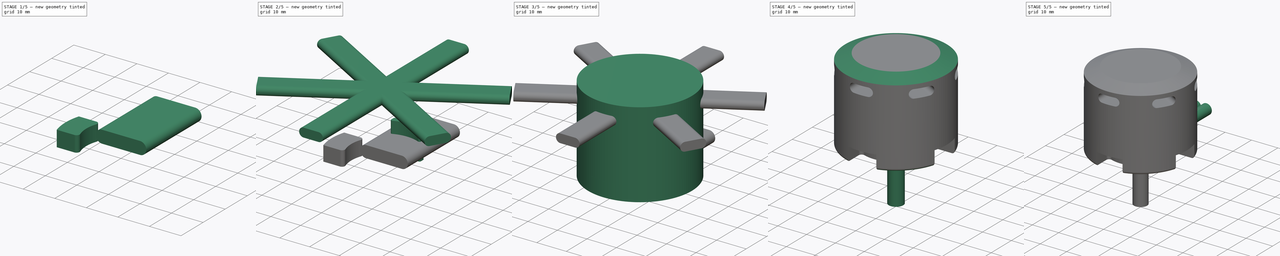
[diagram: build sequence overview — one tinted view per stage of 5, left to right]
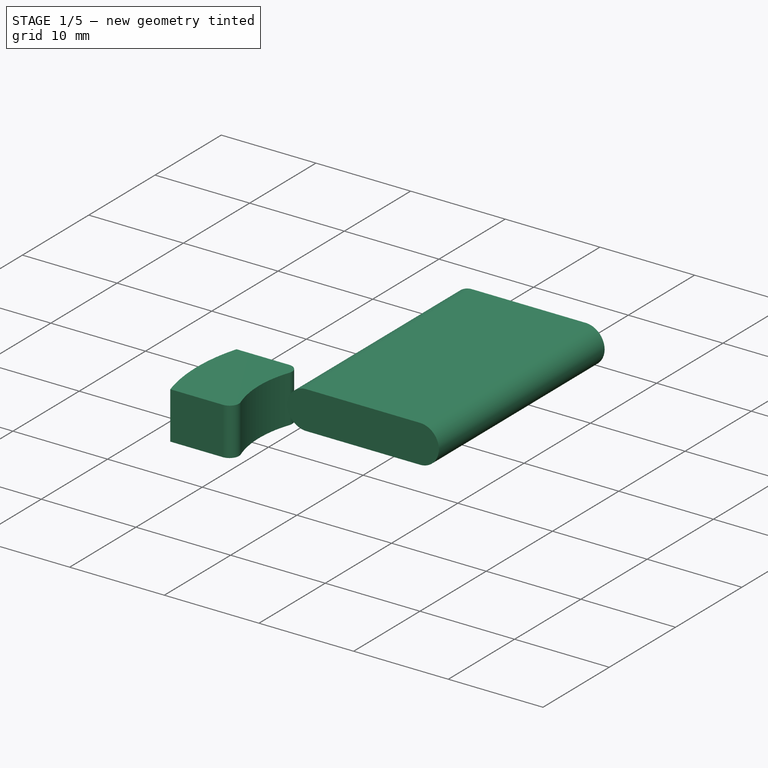
[diagram: stage 1 of 5 — iso view after this stage's code; geometry added in this stage tinted green]
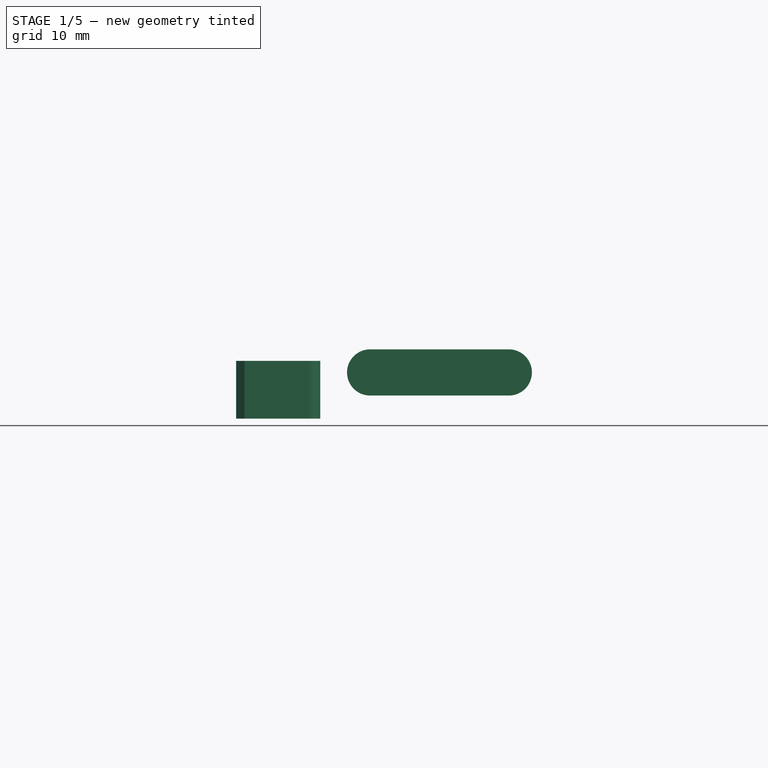
[diagram: stage 1 of 5 — front view after this stage's code; geometry added in this stage tinted green]
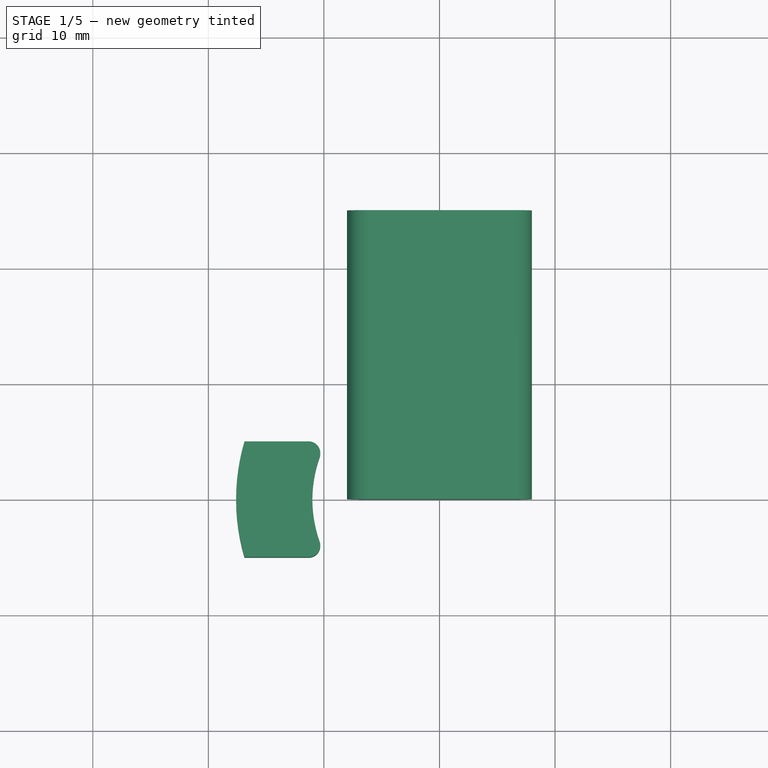
[diagram: stage 1 of 5 — top view after this stage's code; geometry added in this stage tinted green]
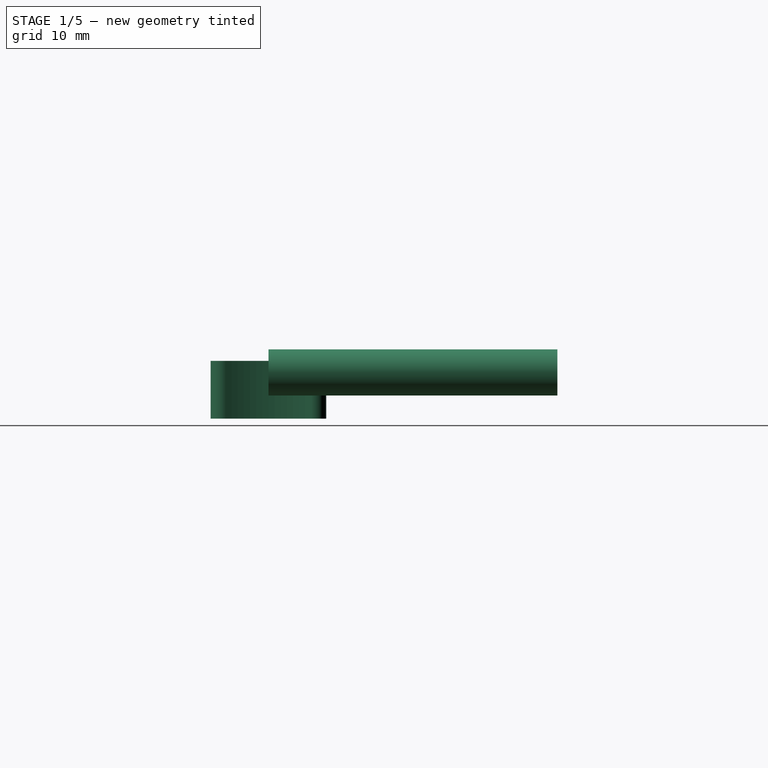
[diagram: stage 1 of 5 — right view after this stage's code; geometry added in this stage tinted green]
FCSTD DOCUMENT  (FreeCAD 0.19R24267 +99 (Git))
Label: AXI_28XX
License: All rights reserved
LicenseURL: http://en.wikipedia.org/wiki/All_rights_reserved
objects: Sketcher::SketchObject×7, PartDesign::Body×7, PartDesign::Pad×6, Part::Cylinder×3, PartDesign::FeatureBase×2, Spreadsheet::Sheet×1, PartDesign::Hole×1, PartDesign::PolarPattern×1, PartDesign::Chamfer×1, PartDesign::Fillet×1, Part::MultiFuse×1, Part::Cut×1, App::Part×1
note: 40 computed .brp shape members not serialized (recipe doc carries the construction recipe); baked Part::Feature solids carry a one-line shape summary decoded from their .brp

FEATURE [PartDesign::Body] Body002
  Group = -> [Sketch004,Pad003]
  Origin = -> Origin003
  Tip = -> Pad003
FEATURE [Sketcher::SketchObject] Sketch005
  FullyConstrained = true
  MapMode = 5
  Support = -> [XY_Plane004]
  sketch-geometry (6):
    g0: ArcOfCircle CenterX=0 CenterY=0 CenterZ=0 NormalX=0 NormalY=0 NormalZ=1 AngleXU=0 Radius=11 StartAngle=2.80176 EndAngle=3.48143
    g1: ArcOfCircle CenterX=0 CenterY=0 CenterZ=0 NormalX=0 NormalY=0 NormalZ=1 AngleXU=0 Radius=17.6 StartAngle=2.85353 EndAngle=3.42965
    g2: LineSegment StartX=-16.8748 StartY=5 StartZ=0 EndX=-11.3137 EndY=5 EndZ=0
    g3: LineSegment StartX=-16.8748 StartY=-5 StartZ=0 EndX=-11.3137 EndY=-5 EndZ=0
    g4: ArcOfCircle CenterX=-11.3137 CenterY=4 CenterZ=0 NormalX=0 NormalY=0 NormalZ=1 AngleXU=0 Radius=1 StartAngle=5.94335 EndAngle=7.85398
    g5: ArcOfCircle CenterX=-11.3137 CenterY=-4 CenterZ=0 NormalX=0 NormalY=0 NormalZ=1 AngleXU=0 Radius=1 StartAngle=4.71239 EndAngle=6.62302
  constraints (16):
    c: Coincident(g0,g-1)
    c: Coincident(g1,g0)
    c: Radius(g0) = 11
    c: Radius(g1) = 17.6
    c: Coincident(g2,g1)
    c: Coincident(g3,g1)
    c: Horizontal(g3)
    c: Horizontal(g2)
    c: Tangent(g2,g4) = 1.5708
    c: Tangent(g0,g4) = 1.5708
    c: Tangent(g0,g5) = 1.5708
    c: Tangent(g3,g5) = -1.5708
    c: Equal(g5,g4)
    c: Radius(g4) = 1
    c: Symmetric(g0,g0,g-1)
    c: DistanceY(g1,g1) = 10
FEATURE [PartDesign::Pad] Pad004
  Direction = (1,1,1)
  Length = 5
  Length2 = 100
  Profile = -> Sketch005
  Type = 0
FEATURE [PartDesign::Body] Body004
  BaseFeature = -> Body003
  Group = -> [Clone]
  Origin = -> Origin005
  Placement = pos=(0,0,0) rot=(0,0,1;3.14159rad)
  Tip = -> Clone
FEATURE [PartDesign::FeatureBase] Clone001
  BaseFeature = -> Body003
FEATURE [PartDesign::Body] Body005
  BaseFeature = -> Body003
  Group = -> [Clone001]
  Origin = -> Origin006
  Placement = pos=(0,0,0) rot=(0,0,1;1.5708rad)
  Tip = -> Clone001
FEATURE [Sketcher::SketchObject] Sketch006
  FullyConstrained = true
  MapMode = 5
  Placement = pos=(0,0,0) rot=(1,0,0;1.5708rad)
  Support = -> [XZ_Plane007]
  sketch-geometry (4):
    g0: ArcOfCircle CenterX=-6 CenterY=4 CenterZ=0 NormalX=0 NormalY=0 NormalZ=1 AngleXU=0 Radius=2 StartAngle=1.5708 EndAngle=4.71239
    g1: ArcOfCircle CenterX=6 CenterY=4 CenterZ=0 NormalX=0 NormalY=0 NormalZ=1 AngleXU=0 Radius=2 StartAngle=4.71239 EndAngle=7.85398
    g2: LineSegment StartX=-6 StartY=2 StartZ=0 EndX=6 EndY=2 EndZ=0
    g3: LineSegment StartX=-6 StartY=6 StartZ=0 EndX=6 EndY=6 EndZ=0
  constraints (9):
    c: Tangent(g0,g3) = 1.5708
    c: Tangent(g0,g2) = -1.5708
    c: Tangent(g2,g1) = -1.5708
    c: Tangent(g3,g1) = 1.5708
    c: Horizontal(g2)
    c: Symmetric(g0,g1,g-2)
    c: Radius(g1) = 2
    c: DistanceX(g0,g1) = 12
    c: DistanceY(g-1,g1) = 2
FEATURE [PartDesign::Pad] Pad005
  Direction = (1,1,1)
  Length = 25
  Length2 = 100
  Placement = pos=(0,0,0) rot=(1,0,0;1.5708rad)
  Profile = -> Sketch006
  Reversed = true
  Type = 0
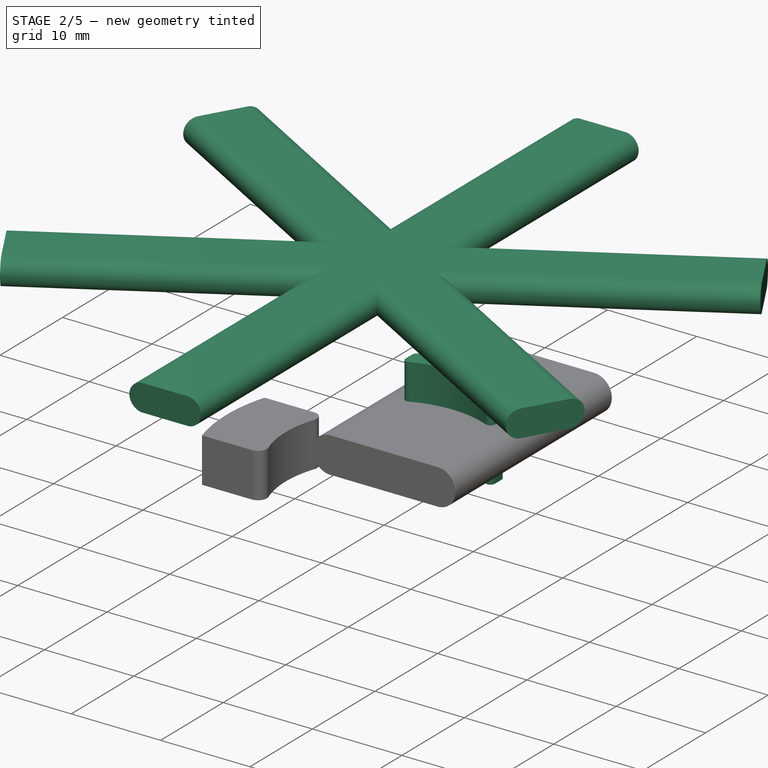
[diagram: stage 2 of 5 — iso view after this stage's code; geometry added in this stage tinted green]
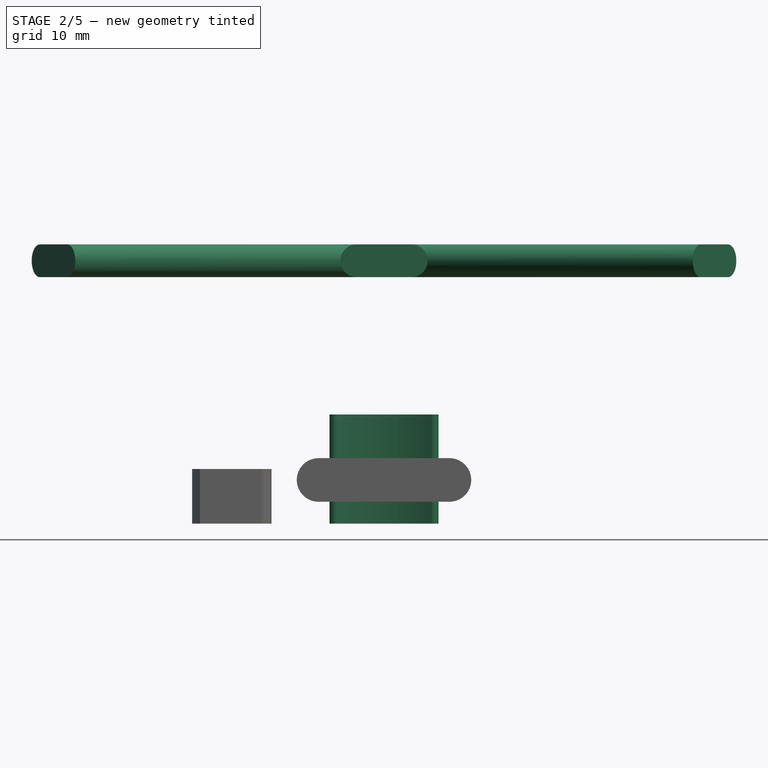
[diagram: stage 2 of 5 — front view after this stage's code; geometry added in this stage tinted green]
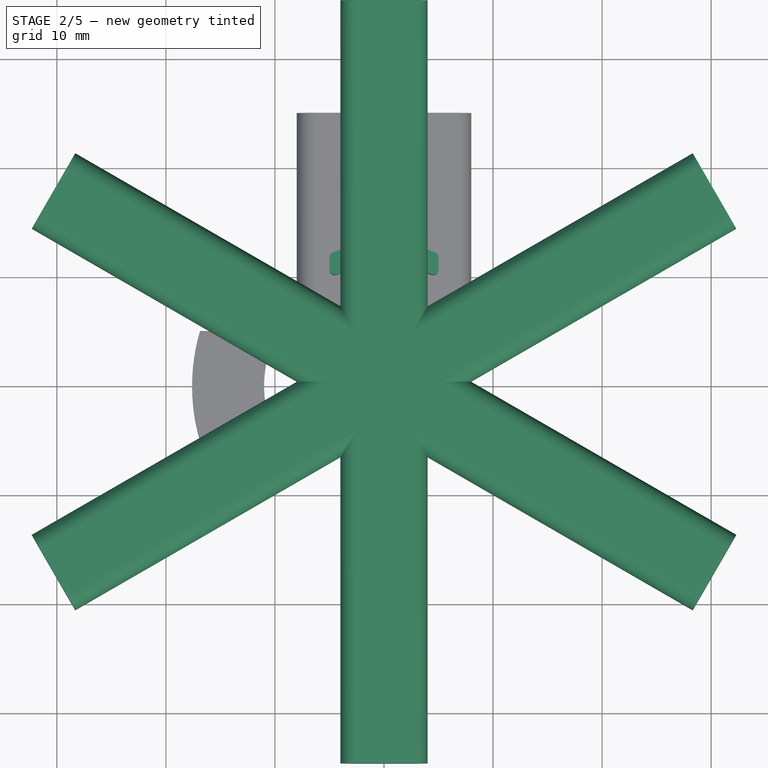
[diagram: stage 2 of 5 — top view after this stage's code; geometry added in this stage tinted green]
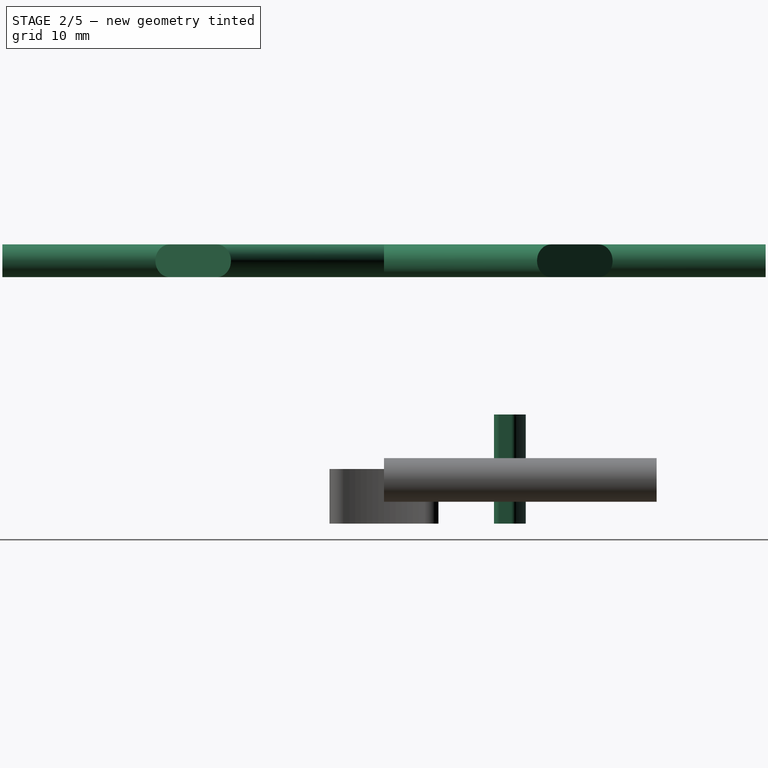
[diagram: stage 2 of 5 — right view after this stage's code; geometry added in this stage tinted green]
FEATURE [Sketcher::SketchObject] Sketch003
  FullyConstrained = true
  MapMode = 5
  Placement = pos=(0,0,0) rot=(1,0,0;1.5708rad)
  Support = -> [XZ_Plane002]
  expr: Constraints[8] = <<AxiParameters>>.VAL_A - 5
  sketch-geometry (4):
    g0: ArcOfCircle CenterX=-2.5 CenterY=24.1 CenterZ=0 NormalX=0 NormalY=0 NormalZ=1 AngleXU=0 Radius=1.5 StartAngle=1.5708 EndAngle=4.71239
    g1: ArcOfCircle CenterX=2.5 CenterY=24.1 CenterZ=0 NormalX=0 NormalY=0 NormalZ=1 AngleXU=0 Radius=1.5 StartAngle=4.71239 EndAngle=7.85398
    g2: LineSegment StartX=-2.5 StartY=22.6 StartZ=0 EndX=2.5 EndY=22.6 EndZ=0
    g3: LineSegment StartX=-2.5 StartY=25.6 StartZ=0 EndX=2.5 EndY=25.6 EndZ=0
  constraints (9):
    c: Tangent(g0,g3) = 1.5708
    c: Tangent(g0,g2) = -1.5708
    c: Tangent(g2,g1) = -1.5708
    c: Tangent(g3,g1) = 1.5708
    c: Horizontal(g2)
    c: Symmetric(g0,g1,g-2)
    c: Radius(g0) = 1.5
    c: DistanceX(g0,g1) = 5
    c: DistanceY(g-1,g1) = 24.1
FEATURE [PartDesign::Pad] Pad002
  Direction = (1,1,1)
  Length = 35
  Length2 = 100
  Placement = pos=(0,0,0) rot=(1,0,0;1.5708rad)
  Profile = -> Sketch003
  Type = 0
FEATURE [PartDesign::PolarPattern] PolarPattern
  Angle = 360
  Axis = -> Z_Axis002
  BaseFeature = -> Pad002
  Occurrences = 6
  Originals = -> [Pad002]
  Placement = pos=(0,0,0) rot=(1,0,0;1.5708rad)
FEATURE [PartDesign::Body] Body
  Group = -> [Sketch,Sketch001,Pad,Hole,Sketch002,Pad001,Chamfer,Fillet]
  Origin = -> Origin001
  Tip = -> Fillet
FEATURE [Sketcher::SketchObject] Sketch004
  FullyConstrained = true
  MapMode = 5
  Support = -> [XY_Plane003]
  sketch-geometry (8):
    g0: ArcOfCircle CenterX=0 CenterY=0 CenterZ=0 NormalX=0 NormalY=0 NormalZ=1 AngleXU=0 Radius=13 StartAngle=1.20253 EndAngle=1.93906
    g1: ArcOfCircle CenterX=0 CenterY=0 CenterZ=0 NormalX=0 NormalY=0 NormalZ=1 AngleXU=0 Radius=11 StartAngle=1.16875 EndAngle=1.97284
    g2: LineSegment StartX=5 StartY=10.583 StartZ=0 EndX=5 EndY=11.6619 EndZ=0
    g3: LineSegment StartX=-5 StartY=10.583 StartZ=0 EndX=-5 EndY=11.6619 EndZ=0
    g4: ArcOfCircle CenterX=-4.5 CenterY=10.583 CenterZ=0 NormalX=0 NormalY=0 NormalZ=1 AngleXU=0 Radius=0.5 StartAngle=3.14159 EndAngle=5.11444
    g5: ArcOfCircle CenterX=4.5 CenterY=10.583 CenterZ=0 NormalX=0 NormalY=0 NormalZ=1 AngleXU=0 Radius=0.5 StartAngle=4.31034 EndAngle=6.28319
    g6: ArcOfCircle CenterX=-4.5 CenterY=11.6619 CenterZ=0 NormalX=0 NormalY=0 NormalZ=1 AngleXU=0 Radius=0.5 StartAngle=1.93906 EndAngle=3.14159
    g7: ArcOfCircle CenterX=4.5 CenterY=11.6619 CenterZ=0 NormalX=0 NormalY=0 NormalZ=1 AngleXU=0 Radius=0.5 StartAngle=8e-16 EndAngle=1.20253
  constraints (19):
    c: Coincident(g1,g0)
    c: Vertical(g3)
    c: Vertical(g2)
    c: Tangent(g1,g4) = 1.5708
    c: Tangent(g3,g4) = 1.5708
    c: Tangent(g1,g5) = 1.5708
    c: Tangent(g2,g5) = -1.5708
    c: Tangent(g0,g6) = -1.5708
    c: Tangent(g3,g6) = 1.5708
    c: Tangent(g0,g7) = -1.5708
    c: Tangent(g2,g7) = -1.5708
    c: Equal(g6,g7)
    c: Symmetric(g3,g2,g-2)
    c: Radius(g5) = 0.5
    c: Radius(g7) = 0.5
    c: DistanceX(g3,g2) = 10
    c: Radius(g1) = 11
    c: Radius(g0) = 13
    c: Coincident(g0,g-1)
FEATURE [PartDesign::Pad] Pad003
  Direction = (1,1,1)
  Length = 10
  Length2 = 100
  Profile = -> Sketch004
  Type = 0
FEATURE [PartDesign::Body] Body003
  Group = -> [Sketch005,Pad004]
  Origin = -> Origin004
  Tip = -> Pad004
FEATURE [PartDesign::FeatureBase] Clone
  BaseFeature = -> Body003
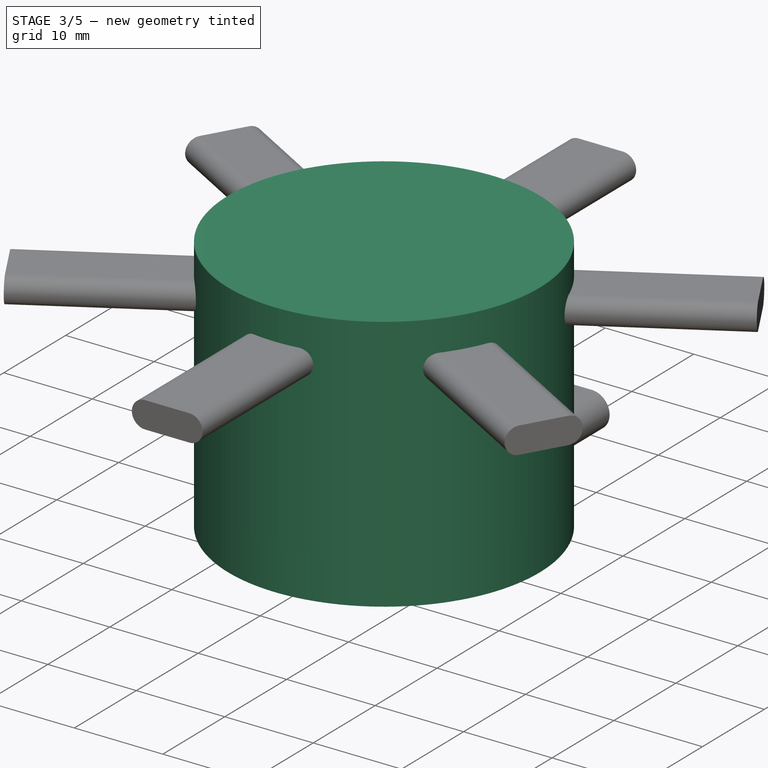
[diagram: stage 3 of 5 — iso view after this stage's code; geometry added in this stage tinted green]
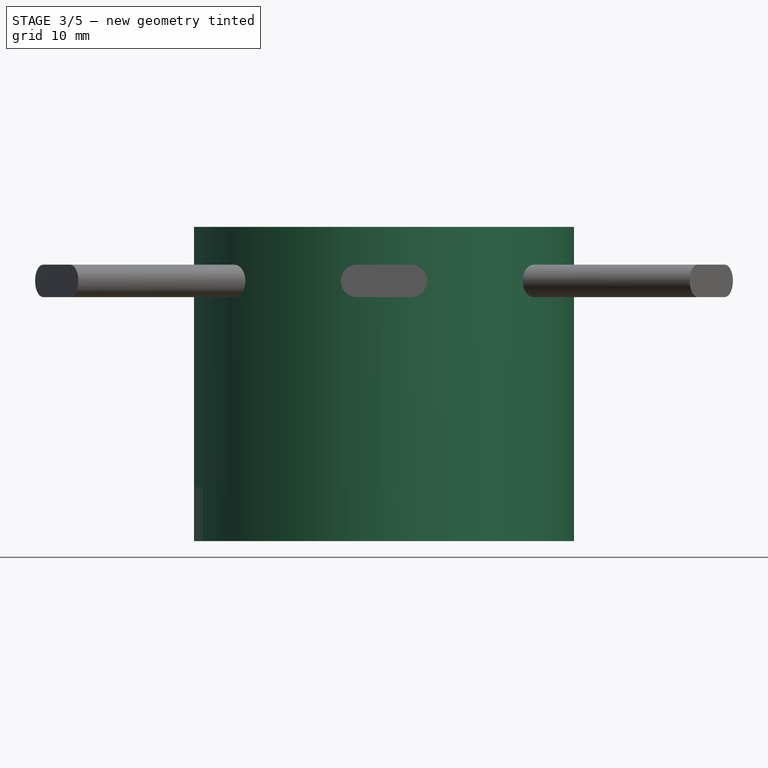
[diagram: stage 3 of 5 — front view after this stage's code; geometry added in this stage tinted green]
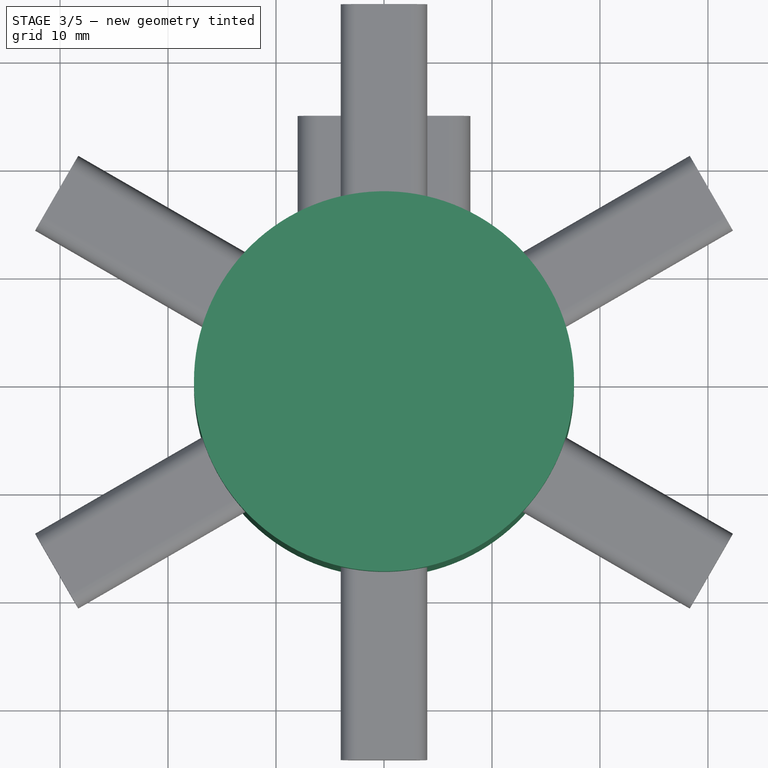
[diagram: stage 3 of 5 — top view after this stage's code; geometry added in this stage tinted green]
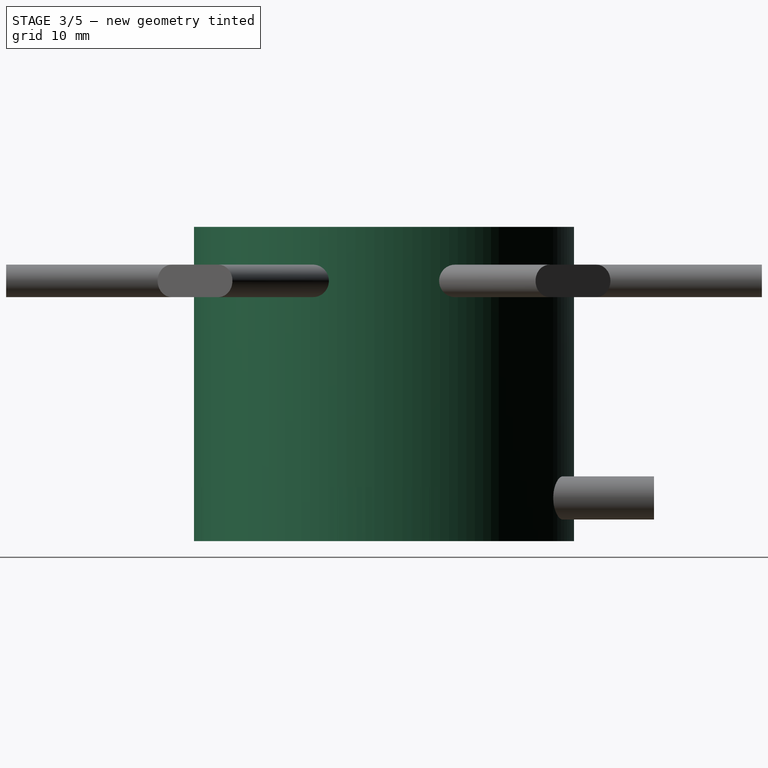
[diagram: stage 3 of 5 — right view after this stage's code; geometry added in this stage tinted green]
FEATURE [Spreadsheet::Sheet] Spreadsheet  label="AxiParameters"
  cells = A1=AXI-28xx; B1=A; C1=B; D1=L; A2=AXI-2808; B2=29.1; C2=18; D2=49.6; A3=AXI-2814; B3=35.1; C3=18; D3=55.6; A4=AXI-2820; B4=43.4; C4=20; D4=65.90000000000001; A5=AXI-2826; B5=49.4; C5=20; D5=71.90000000000001; A6=Copier le choix de votre moteur dans la ligne ci dessous; A7=Choix; B7=A; C7=B; D7=L; A8(CHOIX)=AXI-2808; B8(VAL_A)=29.1; C8(VAL_B)=18; D8(VAL_L)=49.6
FEATURE [Sketcher::SketchObject] Sketch
  FullyConstrained = true
  MapMode = 5
  Placement = pos=(0,0,0) rot=(1,0,0;3.14159rad)
  sketch-geometry (14):
    g0: Circle CenterX=0 CenterY=0 CenterZ=0 NormalX=0 NormalY=0 NormalZ=1 AngleXU=0 Radius=8
    g1: Circle CenterX=0 CenterY=0 CenterZ=0 NormalX=0 NormalY=0 NormalZ=1 AngleXU=0 Radius=12.5
    g2: LineSegment StartX=0 StartY=0 StartZ=0 EndX=8.83883 EndY=8.83883 EndZ=0
    g3: LineSegment StartX=0 StartY=0 StartZ=0 EndX=-8.83883 EndY=8.83883 EndZ=0
    g4: LineSegment StartX=0 StartY=0 StartZ=0 EndX=-8.83883 EndY=-8.83883 EndZ=0
    g5: LineSegment StartX=0 StartY=0 StartZ=0 EndX=8.83883 EndY=-8.83883 EndZ=0
    g6: Circle CenterX=8.83883 CenterY=8.83883 CenterZ=0 NormalX=0 NormalY=0 NormalZ=1 AngleXU=0 Radius=1.5
    g7: Circle CenterX=-8.83883 CenterY=8.83883 CenterZ=0 NormalX=0 NormalY=0 NormalZ=1 AngleXU=0 Radius=1.5
    g8: Circle CenterX=-8.83883 CenterY=-8.83883 CenterZ=0 NormalX=0 NormalY=0 NormalZ=1 AngleXU=0 Radius=1.5
    g9: Circle CenterX=8.83883 CenterY=-8.83883 CenterZ=0 NormalX=0 NormalY=0 NormalZ=1 AngleXU=0 Radius=1.5
    g10: Circle CenterX=-5.65685 CenterY=5.65685 CenterZ=0 NormalX=0 NormalY=0 NormalZ=1 AngleXU=0 Radius=1.5
    g11: Circle CenterX=-5.65685 CenterY=-5.65685 CenterZ=0 NormalX=0 NormalY=0 NormalZ=1 AngleXU=0 Radius=1.5
    g12: Circle CenterX=5.65685 CenterY=-5.65685 CenterZ=0 NormalX=0 NormalY=0 NormalZ=1 AngleXU=0 Radius=1.5
    g13: Circle CenterX=5.65685 CenterY=5.65685 CenterZ=0 NormalX=0 NormalY=0 NormalZ=1 AngleXU=0 Radius=1.5
  constraints (36):
    c: Coincident(g0,g-1)
    c: Coincident(g1,g-1)
    c: Coincident(g2,g-1)
    c: PointOnObject(g2,g1)
    c: Coincident(g3,g-1)
    c: PointOnObject(g3,g1)
    c: Coincident(g4,g-1)
    c: PointOnObject(g4,g1)
    c: Coincident(g5,g-1)
    c: PointOnObject(g5,g1)
    c: Angle(g4,g5) = 1.5708
    c: Angle(g5,g2) = 1.5708
    c: Angle(g2,g3) = 1.5708
    c: Angle(g-1,g3) = 2.35619
    c: Coincident(g6,g2)
    c: Coincident(g7,g3)
    c: Coincident(g9,g5)
    c: Coincident(g8,g4)
    c: PointOnObject(g10,g3)
    c: PointOnObject(g11,g0)
    c: PointOnObject(g12,g0)
    c: PointOnObject(g13,g0)
    c: PointOnObject(g13,g2)
    c: PointOnObject(g10,g0)
    c: PointOnObject(g11,g4)
    c: PointOnObject(g12,g5)
    c: Equal(g8,g11)
    c: Equal(g11,g12)
    c: Equal(g12,g9)
    c: Equal(g9,g13)
    c: Equal(g13,g6)
    c: Equal(g6,g10)
    c: Equal(g10,g7)
    c: Radius(g6) = 1.5
    c: Radius(g1) = 12.5
    c: Radius(g0) = 8
FEATURE [Sketcher::SketchObject] Sketch001
  FullyConstrained = true
  MapMode = 5
  Support = -> [XY_Plane001]
  sketch-geometry (1):
    g0: Circle CenterX=0 CenterY=0 CenterZ=0 NormalX=0 NormalY=0 NormalZ=1 AngleXU=0 Radius=17.6
  constraints (2):
    c: Coincident(g0,g-1)
    c: Radius(g0) = 17.6
FEATURE [PartDesign::Pad] Pad
  Direction = (1,1,1)
  Length = 29.1
  Length2 = 100
  Profile = -> Sketch001
  Type = 0
  expr: Length = <<AxiParameters>>.VAL_A
FEATURE [PartDesign::Hole] Hole
  BaseFeature = -> Pad
  Depth = 0.5
  DepthType = 0
  Diameter = 3.4
  DrillForDepth = false
  DrillPoint = 1
  DrillPointAngle = 118
  HoleCutCountersinkAngle = 90
  HoleCutCustomValues = false
  HoleCutDepth = 0
  HoleCutDiameter = 6.1
  HoleCutType = 0
  ModelActualThread = false
  Profile = -> Sketch
  Tapered = false
  TaperedAngle = 90
  ThreadAngle = 0
  ThreadClass = 0
  ThreadCutOffInner = 0
  ThreadCutOffOuter = 0
  ThreadDirection = 0
  ThreadFit = 0
  ThreadPitch = 0
  ThreadSize = 9
  ThreadType = 1
  Threaded = false
FEATURE [Part::MultiFuse] Fusion
  Shapes = -> [Body006,Body005,Body004,Body003,Body002,Body001]
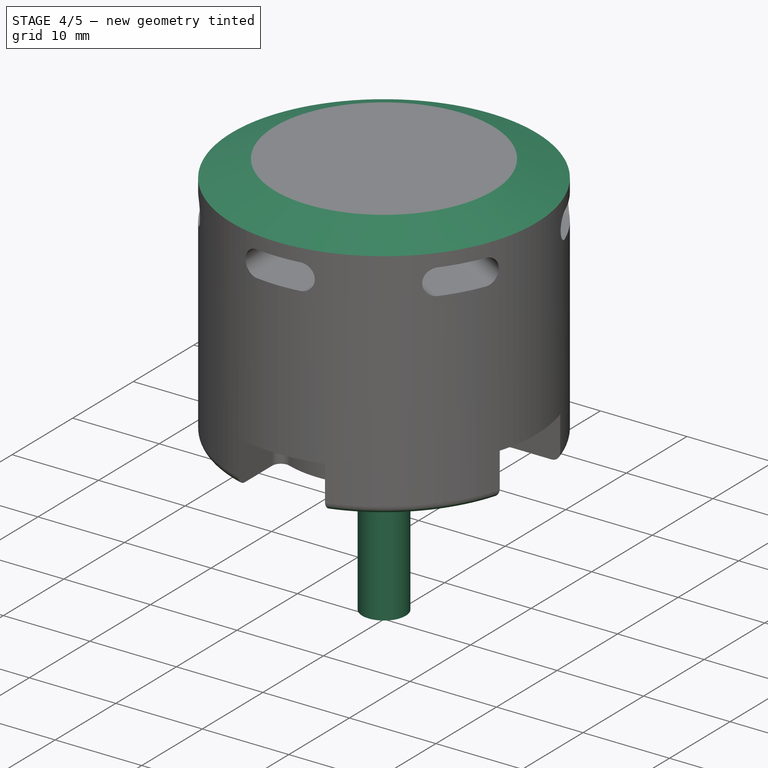
[diagram: stage 4 of 5 — iso view after this stage's code; geometry added in this stage tinted green]
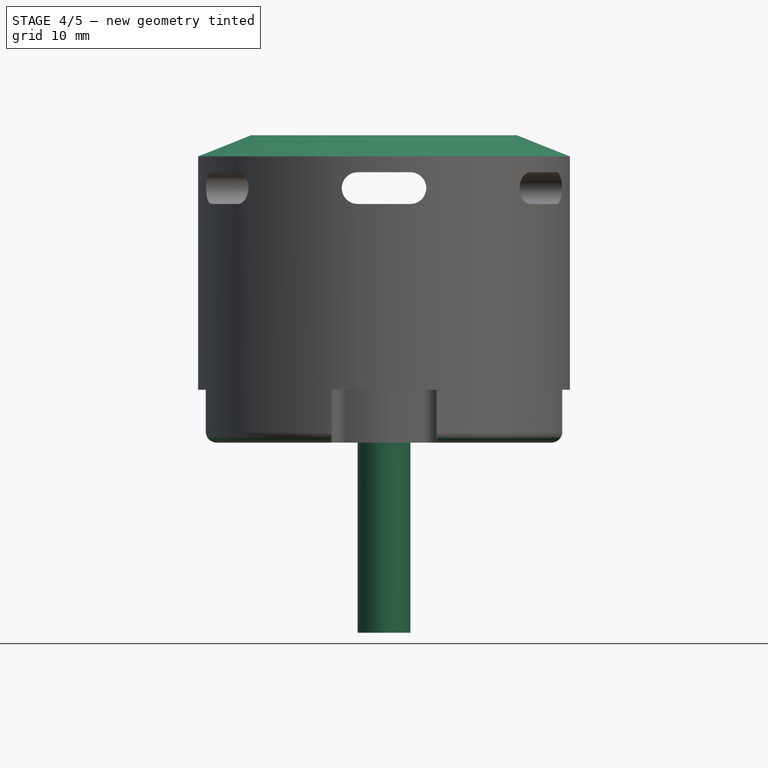
[diagram: stage 4 of 5 — front view after this stage's code; geometry added in this stage tinted green]
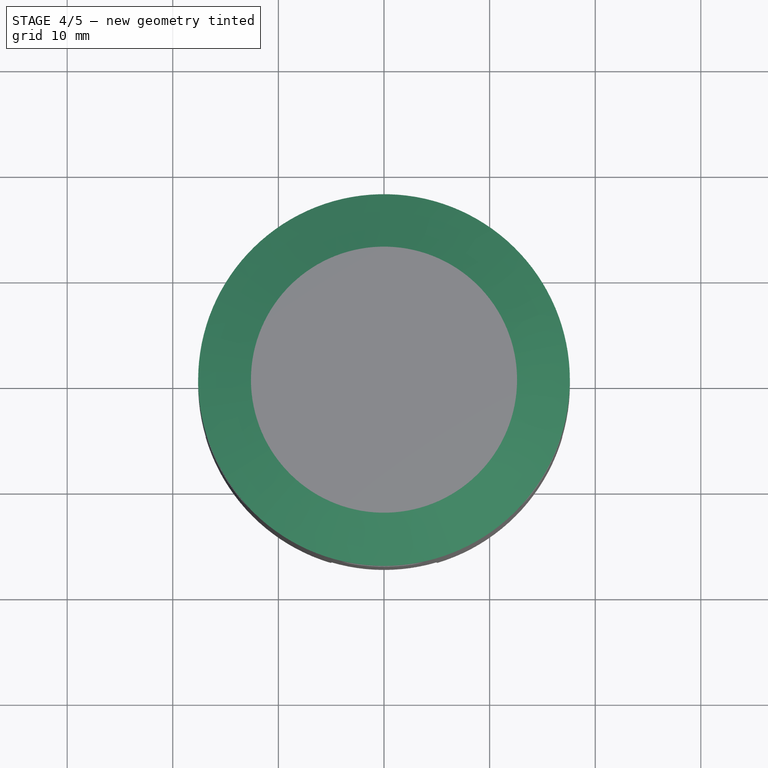
[diagram: stage 4 of 5 — top view after this stage's code; geometry added in this stage tinted green]
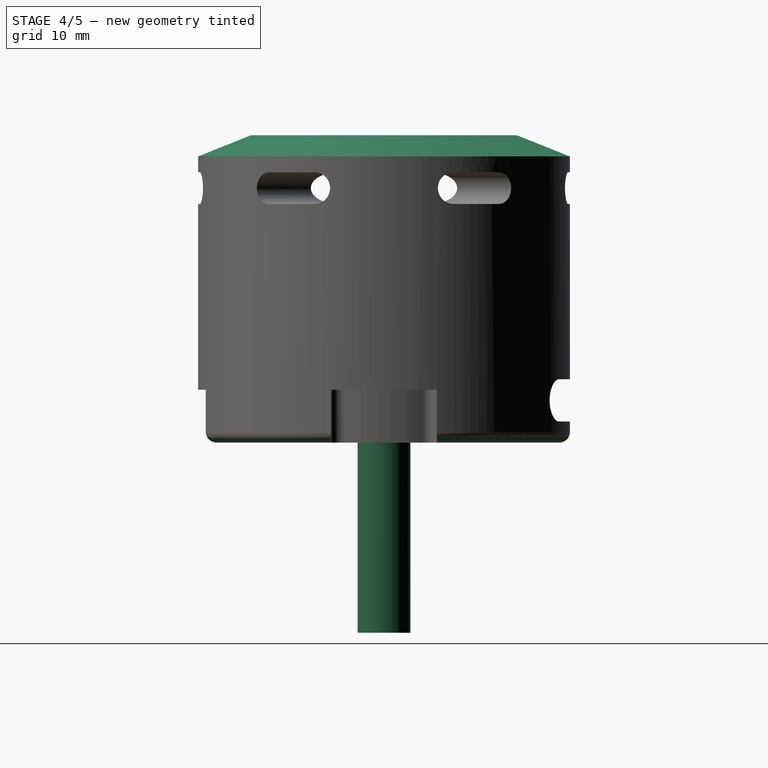
[diagram: stage 4 of 5 — right view after this stage's code; geometry added in this stage tinted green]
FEATURE [Sketcher::SketchObject] Sketch002
  FullyConstrained = true
  MapMode = 5
  Support = -> [XY_Plane001]
  sketch-geometry (1):
    g0: Circle CenterX=0 CenterY=0 CenterZ=0 NormalX=0 NormalY=0 NormalZ=1 AngleXU=0 Radius=2.5
  constraints (2):
    c: Coincident(g0,g-1)
    c: Radius(g0) = 2.5
FEATURE [PartDesign::Pad] Pad001
  BaseFeature = -> Hole
  Direction = (1,1,1)
  Length = 18
  Length2 = 100
  Profile = -> Sketch002
  Reversed = true
  Type = 0
  expr: Length = <<AxiParameters>>.VAL_B
FEATURE [PartDesign::Body] Body001
  Group = -> [Sketch003,Pad002,PolarPattern]
  Origin = -> Origin002
  Tip = -> PolarPattern
FEATURE [PartDesign::Chamfer] Chamfer
  Angle = 45
  Base = -> Pad001 [Edge3]
  BaseFeature = -> Pad001
  ChamferType = 1
  FlipDirection = false
  Size = 2
  Size2 = 5
  SupportTransform = false
FEATURE [PartDesign::Fillet] Fillet
  Base = -> Chamfer [Edge3]
  BaseFeature = -> Chamfer
  Radius = 1
  SupportTransform = false
FEATURE [Part::Cut] Cut
  Base = -> Body
  Tool = -> Fusion
FEATURE [App::Part] Part  label="AXI-2808"
  Group = -> [Spreadsheet,Body,Body001,Body002,Body003,Body004,Body005,Body006,Cylinder,Cylinder001,Cylinder002,Fusion,Cut]
  Origin = -> Origin
  expr: Label = <<AxiParameters>>.CHOIX
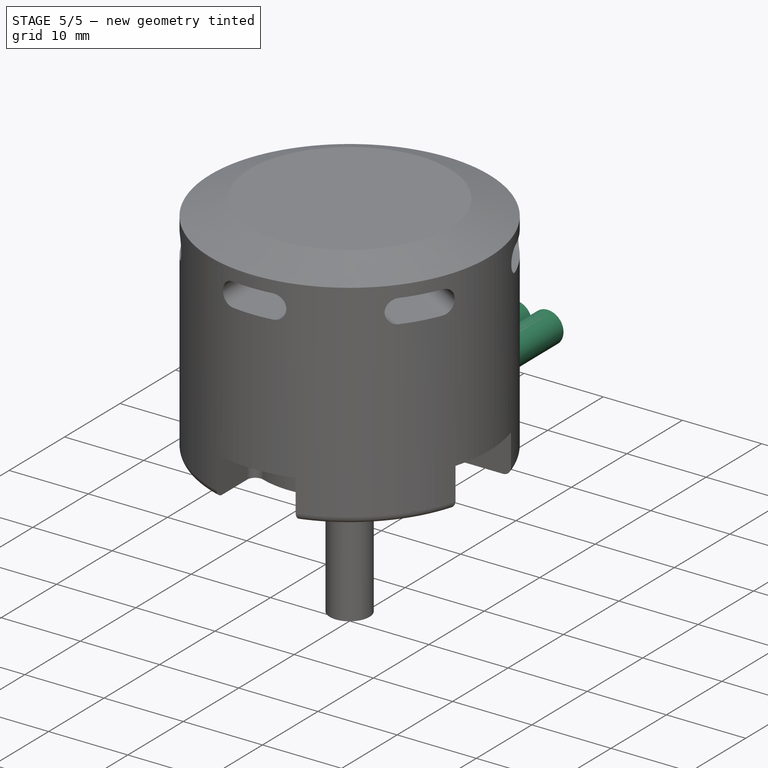
[diagram: stage 5 of 5 — iso view after this stage's code; geometry added in this stage tinted green]
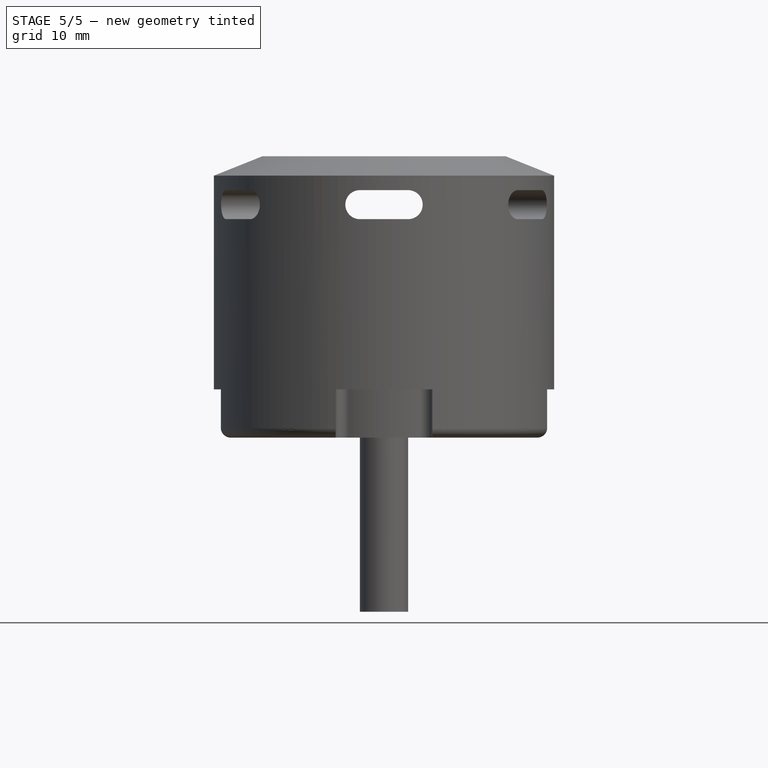
[diagram: stage 5 of 5 — front view after this stage's code; geometry added in this stage tinted green]
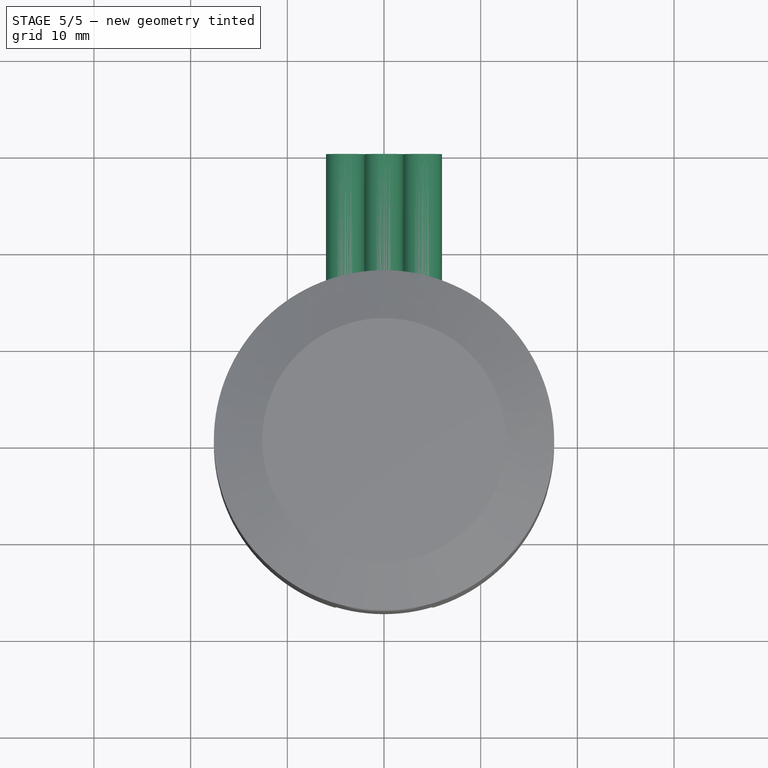
[diagram: stage 5 of 5 — top view after this stage's code; geometry added in this stage tinted green]
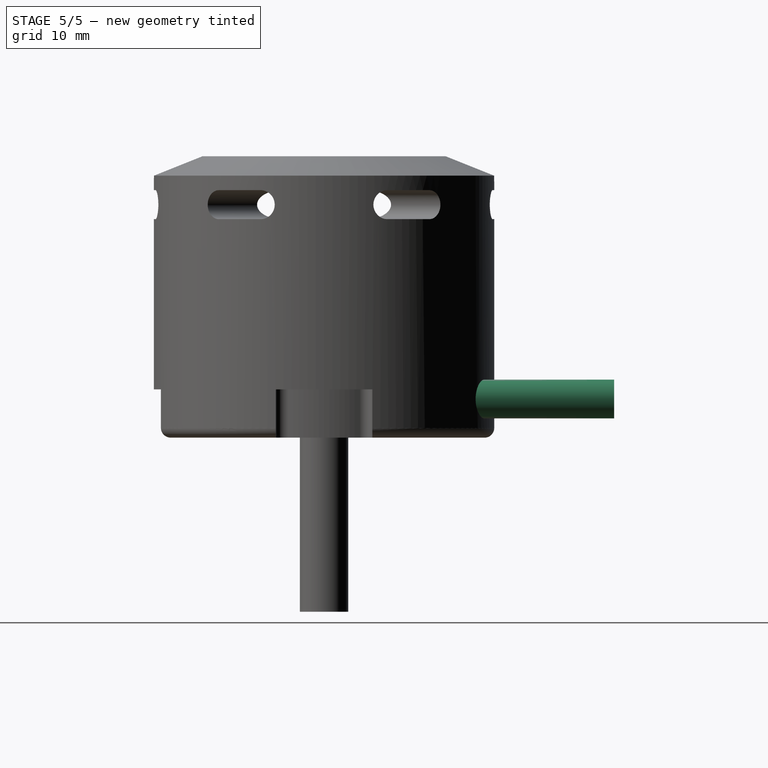
[diagram: stage 5 of 5 — right view after this stage's code; geometry added in this stage tinted green]
FEATURE [PartDesign::Body] Body006
  Group = -> [Sketch006,Pad005]
  Origin = -> Origin007
  Tip = -> Pad005
FEATURE [Part::Cylinder] Cylinder  label="Cylindre"
  Angle = 360
  AttacherType = Attacher::AttachEngine3D
  Height = 30
  Placement = pos=(4,0,4) rot=(-1,0,0;1.5708rad)
  Radius = 2
FEATURE [Part::Cylinder] Cylinder001  label="Cylindre001"
  Angle = 360
  AttacherType = Attacher::AttachEngine3D
  Height = 30
  Placement = pos=(0,0,4) rot=(-1,0,0;1.5708rad)
  Radius = 2
FEATURE [Part::Cylinder] Cylinder002  label="Cylindre002"
  Angle = 360
  AttacherType = Attacher::AttachEngine3D
  Height = 30
  Placement = pos=(-4,1e-15,4) rot=(-1,0,0;1.5708rad)
  Radius = 2
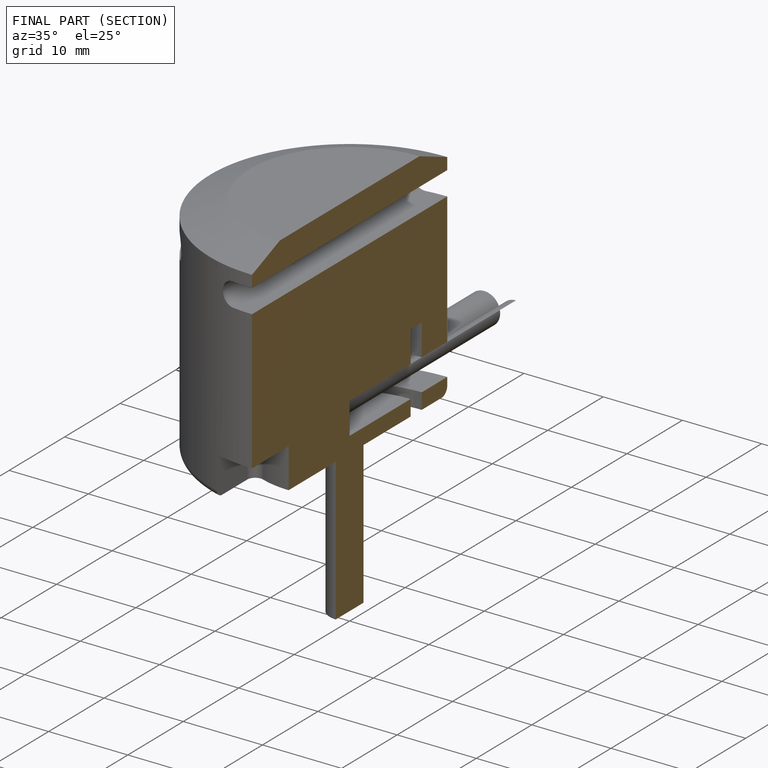
[diagram: finished part — half-section view (interior)]
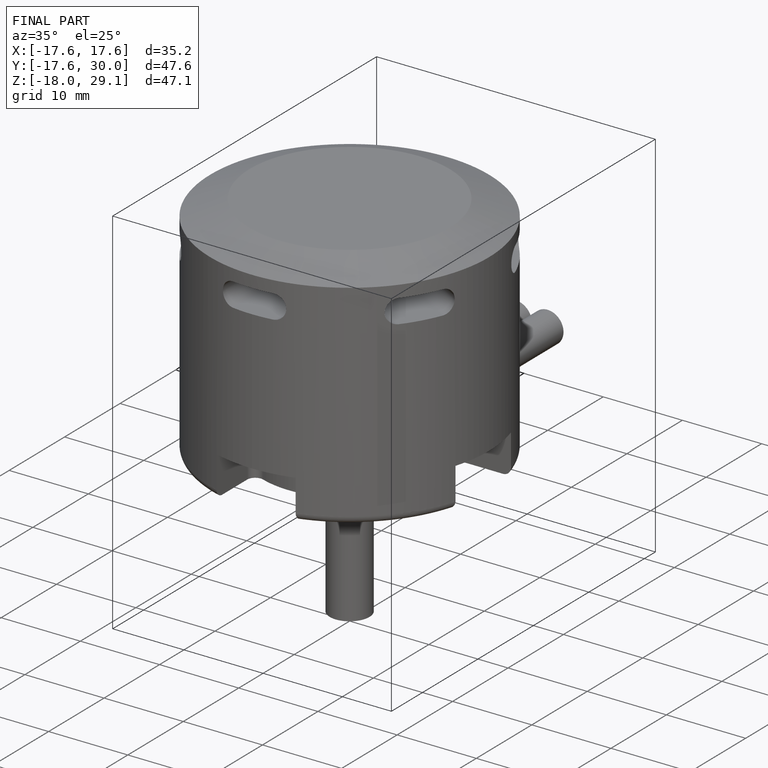
[diagram: finished part — iso view with bounding-box wireframe]
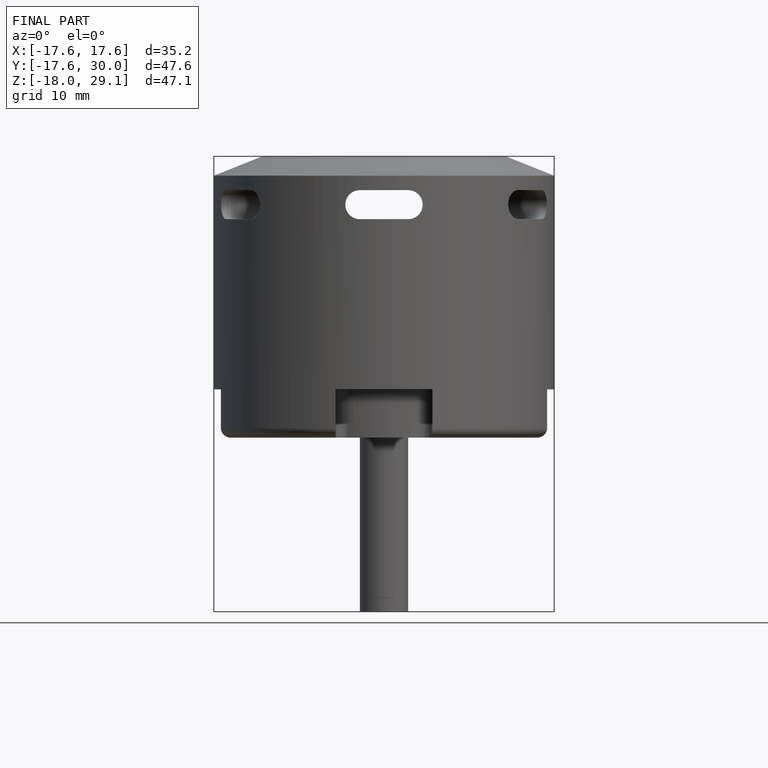
[diagram: finished part — front view with bounding-box wireframe]
